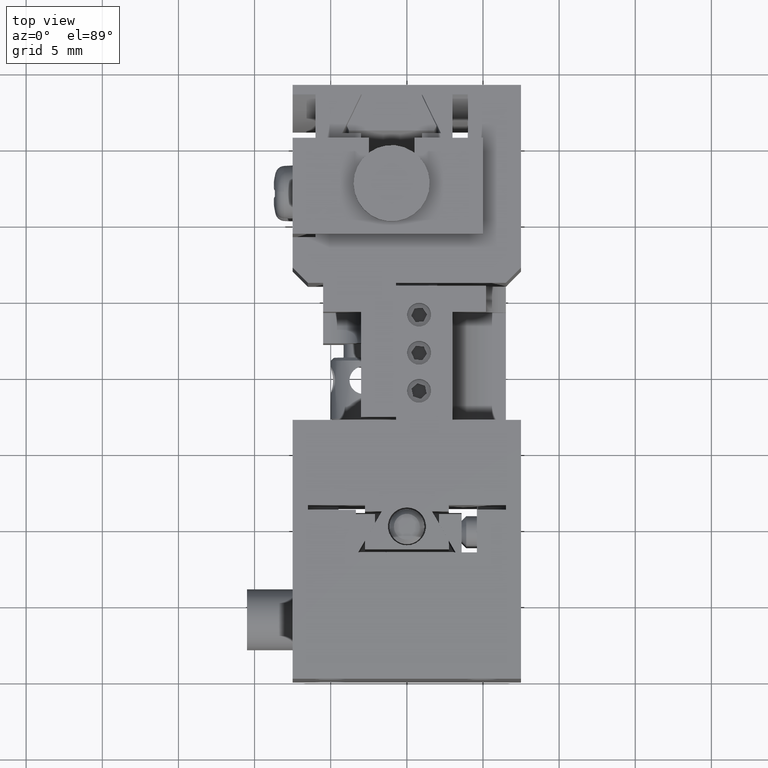
[diagram: clean part render]
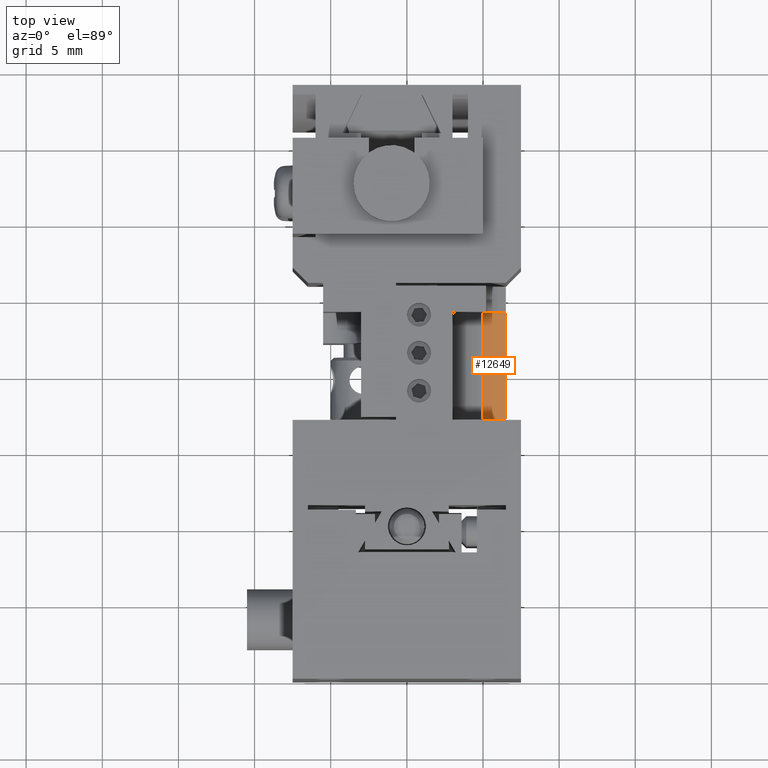
[diagram: same view with one face highlighted and labeled with its STEP entity id]
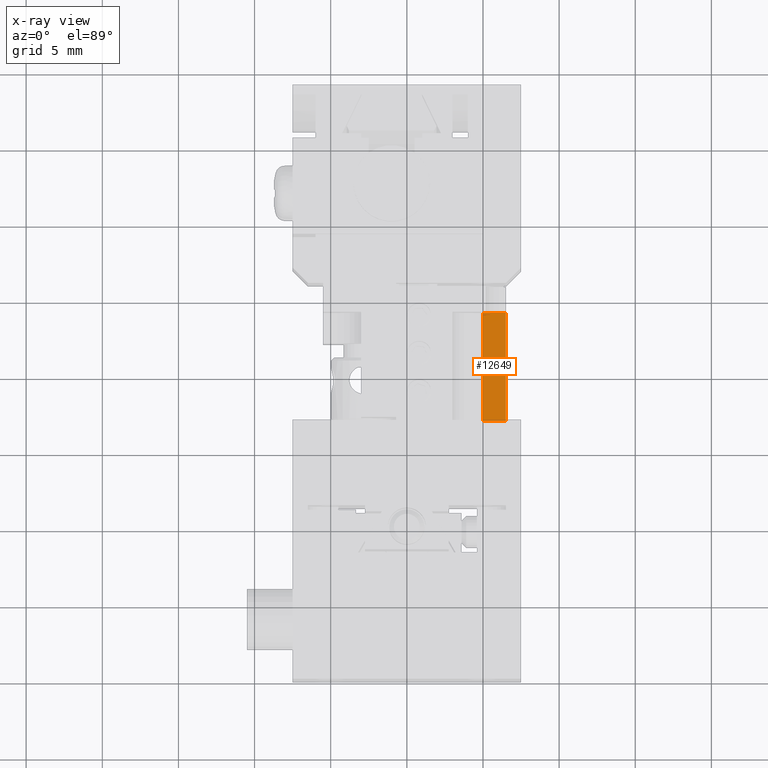
[diagram: x-ray of the same camera — body ghosted, the highlighted face saturated]
A machine part, top view. The second image highlights one B-rep face of the part: STEP entity #12649.
The next image is the same camera in x-ray: the body ghosted, the highlighted face saturated — about 0% of this face is hidden behind the body in this view.
In plain terms, the highlighted planar face has unit normal (0, -0, -1).
Its self-contained STEP definition (entity closure, byte-faithful):
#1185 = DIRECTION ( 'NONE',  ( 0.000000000000000000, 0.000000000000000000, -1.000000000000000000 ) ) ;
#2062 = ORIENTED_EDGE ( 'NONE', *, *, #10242, .F. ) ;
#2837 = PLANE ( 'NONE',  #21175 ) ;
#2960 = DIRECTION ( 'NONE',  ( 1.000000000000000000, 0.000000000000000000, 0.000000000000000000 ) ) ;
#3528 = VERTEX_POINT ( 'NONE', #19297 ) ;
#4931 = DIRECTION ( 'NONE',  ( -0.000000000000000000, 1.000000000000000000, 0.000000000000000000 ) ) ;
#6069 = DIRECTION ( 'NONE',  ( 0.000000000000000000, 0.000000000000000000, 1.000000000000000000 ) ) ;
#6758 = DIRECTION ( 'NONE',  ( -1.000000000000000000, 0.000000000000000000, 0.000000000000000000 ) ) ;
#6883 = CARTESIAN_POINT ( 'NONE',  ( -4.400000000000000355, -3.000000000000000000, 1.500000000000000000 ) ) ;
#6979 = VECTOR ( 'NONE', #6758, 1000.000000000000000 ) ;
#7014 = ORIENTED_EDGE ( 'NONE', *, *, #18036, .F. ) ;
#7413 = DIRECTION ( 'NONE',  ( 1.000000000000000000, 0.000000000000000000, 0.000000000000000000 ) ) ;
#8043 = LINE ( 'NONE', #16012, #15959 ) ;
#9059 = LINE ( 'NONE', #15192, #22795 ) ;
#10242 = EDGE_CURVE ( 'NONE', #3528, #16087, #24967, .T. ) ;
#10878 = EDGE_CURVE ( 'NONE', #16087, #13036, #9059, .T. ) ;
#11349 = CARTESIAN_POINT ( 'NONE',  ( 2.700000000000000178, -3.000000000000000000, 0.000000000000000000 ) ) ;
#11889 = ORIENTED_EDGE ( 'NONE', *, *, #10878, .F. ) ;
#11942 = VERTEX_POINT ( 'NONE', #12714 ) ;
#12649 = ADVANCED_FACE ( 'NONE', ( #24830 ), #2837, .F. ) ;
#12714 = CARTESIAN_POINT ( 'NONE',  ( -4.400000000000000355, -3.000000000000000000, 0.000000000000000000 ) ) ;
#13036 = VERTEX_POINT ( 'NONE', #11349 ) ;
#14419 = EDGE_LOOP ( 'NONE', ( #11889, #2062, #7014, #22218 ) ) ;
#15192 = CARTESIAN_POINT ( 'NONE',  ( 2.700000000000000178, -3.000000000000000000, 1.500000000000000000 ) ) ;
#15209 = VECTOR ( 'NONE', #7413, 1000.000000000000000 ) ;
#15959 = VECTOR ( 'NONE', #6069, 1000.000000000000000 ) ;
#16012 = CARTESIAN_POINT ( 'NONE',  ( -4.400000000000000355, -3.000000000000000000, 0.000000000000000000 ) ) ;
#16087 = VERTEX_POINT ( 'NONE', #25145 ) ;
#18036 = EDGE_CURVE ( 'NONE', #11942, #3528, #8043, .T. ) ;
#18683 = LINE ( 'NONE', #22354, #6979 ) ;
#19297 = CARTESIAN_POINT ( 'NONE',  ( -4.400000000000000355, -3.000000000000000000, 1.500000000000000000 ) ) ;
#21175 = AXIS2_PLACEMENT_3D ( 'NONE', #6883, #4931, #2960 ) ;
#22218 = ORIENTED_EDGE ( 'NONE', *, *, #25527, .F. ) ;
#22354 = CARTESIAN_POINT ( 'NONE',  ( 2.700000000000000178, -3.000000000000000000, 0.000000000000000000 ) ) ;
#22523 = CARTESIAN_POINT ( 'NONE',  ( -4.400000000000000355, -3.000000000000000000, 1.500000000000000000 ) ) ;
#22795 = VECTOR ( 'NONE', #1185, 1000.000000000000000 ) ;
#24830 = FACE_OUTER_BOUND ( 'NONE', #14419, .T. ) ;
#24967 = LINE ( 'NONE', #22523, #15209 ) ;
#25145 = CARTESIAN_POINT ( 'NONE',  ( 2.700000000000000178, -3.000000000000000000, 1.500000000000000000 ) ) ;
#25527 = EDGE_CURVE ( 'NONE', #13036, #11942, #18683, .T. ) ;